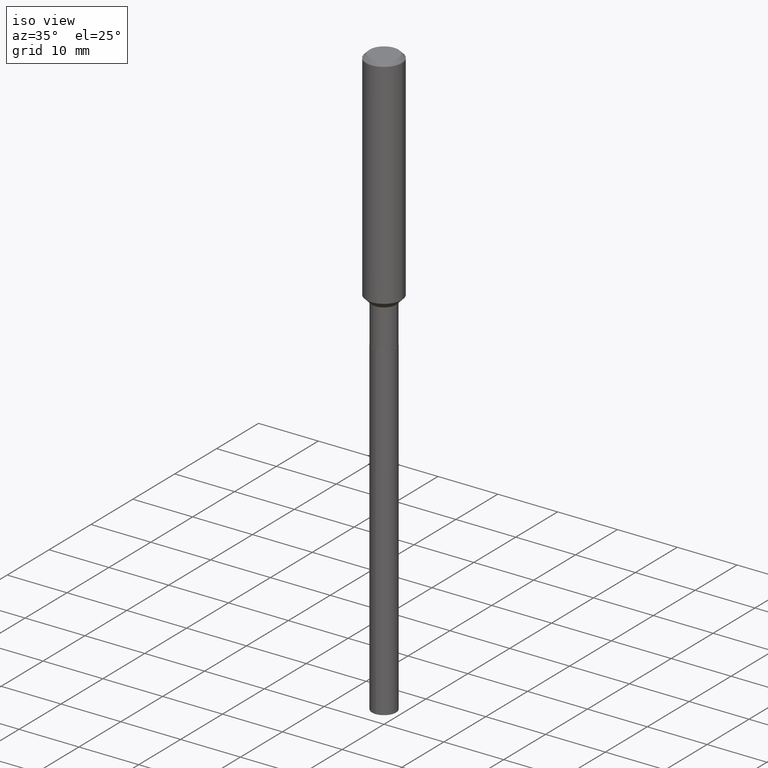
[diagram: clean part render]
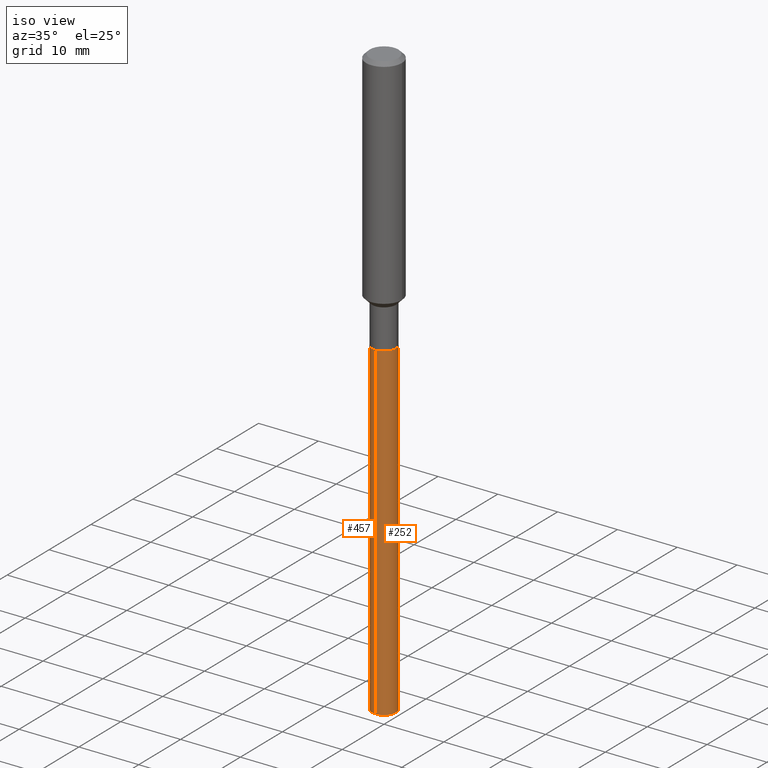
[diagram: same view with one multi-face feature highlighted, each face labeled with its STEP entity id]
A machine part, iso view. The highlighted faces form ONE feature: a constant-radius fillet chain: 2 tangent blend faces with common blend radius 2.0002 mm. The faces share edges in the B-rep.
Their STEP definitions:
[1] entity #457 (Cylinder):
#23 = EDGE_CURVE ( 'NONE', #260, #319, #287, .T. ) ;
#24 = VECTOR ( 'NONE', #190, 39.37007874015748143 ) ;
#28 = DIRECTION ( 'NONE',  ( -6.982962677686264344E-15, -1.000000000000000000, 6.938026650575906587E-15 ) ) ;
#39 = DIRECTION ( 'NONE',  ( -2.445430704826410489E-29, 3.491535902157436245E-15, 1.000000000000000000 ) ) ;
#44 = EDGE_CURVE ( 'NONE', #430, #459, #149, .T. ) ;
#46 = CARTESIAN_POINT ( 'NONE',  ( -5.499083108676978935E-16, -0.07875000000001357303, -3.897979550045322483 ) ) ;
#79 = AXIS2_PLACEMENT_3D ( 'NONE', #377, #185, #28 ) ;
#125 = VECTOR ( 'NONE', #370, 39.37007874015748143 ) ;
#131 = CYLINDRICAL_SURFACE ( 'NONE', #221, 0.07875000000000000056 ) ;
#132 = ORIENTED_EDGE ( 'NONE', *, *, #346, .T. ) ;
#149 = LINE ( 'NONE', #296, #125 ) ;
#185 = DIRECTION ( 'NONE',  ( -2.445430704826410489E-29, 3.491535902157436245E-15, 1.000000000000000000 ) ) ;
#190 = DIRECTION ( 'NONE',  ( -2.445430704826410489E-29, 3.491535902157436640E-15, 1.000000000000000000 ) ) ;
#193 = DIRECTION ( 'NONE',  ( -6.982962677686264344E-15, -1.000000000000000000, 3.469013325287953293E-15 ) ) ;
#221 = AXIS2_PLACEMENT_3D ( 'NONE', #266, #39, #193 ) ;
#254 = CARTESIAN_POINT ( 'NONE',  ( 5.595524044111739581E-16, 0.07874999999998638645, -3.897979550045323371 ) ) ;
#260 = VERTEX_POINT ( 'NONE', #254 ) ;
#261 = AXIS2_PLACEMENT_3D ( 'NONE', #482, #298, #290 ) ;
#266 = CARTESIAN_POINT ( 'NONE',  ( 4.236041066073893047E-29, -6.047943975144096777E-15, -1.732199999999999962 ) ) ;
#268 = ORIENTED_EDGE ( 'NONE', *, *, #23, .F. ) ;
#272 = EDGE_LOOP ( 'NONE', ( #268, #132, #426, #320 ) ) ;
#287 = LINE ( 'NONE', #433, #24 ) ;
#290 = DIRECTION ( 'NONE',  ( -6.982962677686264344E-15, -1.000000000000000000, 3.469013325287953293E-15 ) ) ;
#296 = CARTESIAN_POINT ( 'NONE',  ( -5.499083108677510430E-16, -0.07875000000000603739, -1.732199999999999518 ) ) ;
#298 = DIRECTION ( 'NONE',  ( -2.445430704826410489E-29, 3.491535902157436245E-15, 1.000000000000000000 ) ) ;
#311 = FACE_OUTER_BOUND ( 'NONE', #272, .T. ) ;
#315 = EDGE_CURVE ( 'NONE', #319, #459, #472, .T. ) ;
#319 = VERTEX_POINT ( 'NONE', #446 ) ;
#320 = ORIENTED_EDGE ( 'NONE', *, *, #315, .F. ) ;
#346 = EDGE_CURVE ( 'NONE', #260, #430, #462, .T. ) ;
#370 = DIRECTION ( 'NONE',  ( -2.445430704826410489E-29, 3.491535902157436640E-15, 1.000000000000000000 ) ) ;
#377 = CARTESIAN_POINT ( 'NONE',  ( 9.532304877639853407E-29, -1.360984103028571921E-14, -3.897979550045322927 ) ) ;
#426 = ORIENTED_EDGE ( 'NONE', *, *, #44, .T. ) ;
#430 = VERTEX_POINT ( 'NONE', #46 ) ;
#433 = CARTESIAN_POINT ( 'NONE',  ( 5.595524044111211044E-16, 0.07874999999999394984, -1.732200000000000184 ) ) ;
#446 = CARTESIAN_POINT ( 'NONE',  ( 5.595524044111744511E-16, 0.07874999999999394984, -1.732200000000000184 ) ) ;
#457 = ADVANCED_FACE ( 'NONE', ( #311 ), #131, .T. ) ;
#459 = VERTEX_POINT ( 'NONE', #486 ) ;
#462 = CIRCLE ( 'NONE', #79, 0.07875000000000000056 ) ;
#472 = CIRCLE ( 'NONE', #261, 0.07875000000000000056 ) ;
#482 = CARTESIAN_POINT ( 'NONE',  ( 4.236041066073893047E-29, -6.047943975144096777E-15, -1.732199999999999962 ) ) ;
#486 = CARTESIAN_POINT ( 'NONE',  ( -5.499083108677510430E-16, -0.07875000000000603739, -1.732199999999999518 ) ) ;
[2] entity #252 (Cylinder):
#9 = ORIENTED_EDGE ( 'NONE', *, *, #250, .T. ) ;
#23 = EDGE_CURVE ( 'NONE', #260, #319, #287, .T. ) ;
#24 = VECTOR ( 'NONE', #190, 39.37007874015748143 ) ;
#26 = CARTESIAN_POINT ( 'NONE',  ( 4.236041066073893047E-29, -6.047943975144096777E-15, -1.732199999999999962 ) ) ;
#36 = DIRECTION ( 'NONE',  ( -6.982962677686264344E-15, -1.000000000000000000, 3.469013325287953293E-15 ) ) ;
#44 = EDGE_CURVE ( 'NONE', #430, #459, #149, .T. ) ;
#46 = CARTESIAN_POINT ( 'NONE',  ( -5.499083108676978935E-16, -0.07875000000001357303, -3.897979550045322483 ) ) ;
#49 = ORIENTED_EDGE ( 'NONE', *, *, #44, .F. ) ;
#92 = EDGE_LOOP ( 'NONE', ( #9, #420, #123, #49 ) ) ;
#114 = FACE_OUTER_BOUND ( 'NONE', #92, .T. ) ;
#123 = ORIENTED_EDGE ( 'NONE', *, *, #473, .F. ) ;
#125 = VECTOR ( 'NONE', #370, 39.37007874015748143 ) ;
#146 = DIRECTION ( 'NONE',  ( -6.982962677686264344E-15, -1.000000000000000000, 6.938026650575906587E-15 ) ) ;
#149 = LINE ( 'NONE', #296, #125 ) ;
#172 = DIRECTION ( 'NONE',  ( -6.982962677686264344E-15, -1.000000000000000000, 3.469013325287953293E-15 ) ) ;
#190 = DIRECTION ( 'NONE',  ( -2.445430704826410489E-29, 3.491535902157436640E-15, 1.000000000000000000 ) ) ;
#250 = EDGE_CURVE ( 'NONE', #430, #260, #402, .T. ) ;
#252 = ADVANCED_FACE ( 'NONE', ( #114 ), #474, .T. ) ;
#254 = CARTESIAN_POINT ( 'NONE',  ( 5.595524044111739581E-16, 0.07874999999998638645, -3.897979550045323371 ) ) ;
#260 = VERTEX_POINT ( 'NONE', #254 ) ;
#281 = CIRCLE ( 'NONE', #341, 0.07875000000000000056 ) ;
#287 = LINE ( 'NONE', #433, #24 ) ;
#296 = CARTESIAN_POINT ( 'NONE',  ( -5.499083108677510430E-16, -0.07875000000000603739, -1.732199999999999518 ) ) ;
#318 = AXIS2_PLACEMENT_3D ( 'NONE', #330, #406, #146 ) ;
#319 = VERTEX_POINT ( 'NONE', #446 ) ;
#328 = DIRECTION ( 'NONE',  ( -2.445430704826410489E-29, 3.491535902157436245E-15, 1.000000000000000000 ) ) ;
#330 = CARTESIAN_POINT ( 'NONE',  ( 9.532304877639853407E-29, -1.360984103028571921E-14, -3.897979550045322927 ) ) ;
#341 = AXIS2_PLACEMENT_3D ( 'NONE', #393, #387, #172 ) ;
#370 = DIRECTION ( 'NONE',  ( -2.445430704826410489E-29, 3.491535902157436640E-15, 1.000000000000000000 ) ) ;
#387 = DIRECTION ( 'NONE',  ( -2.445430704826410489E-29, 3.491535902157436245E-15, 1.000000000000000000 ) ) ;
#393 = CARTESIAN_POINT ( 'NONE',  ( 4.236041066073893047E-29, -6.047943975144096777E-15, -1.732199999999999962 ) ) ;
#402 = CIRCLE ( 'NONE', #318, 0.07875000000000000056 ) ;
#406 = DIRECTION ( 'NONE',  ( -2.445430704826410489E-29, 3.491535902157436245E-15, 1.000000000000000000 ) ) ;
#412 = AXIS2_PLACEMENT_3D ( 'NONE', #26, #328, #36 ) ;
#420 = ORIENTED_EDGE ( 'NONE', *, *, #23, .T. ) ;
#430 = VERTEX_POINT ( 'NONE', #46 ) ;
#433 = CARTESIAN_POINT ( 'NONE',  ( 5.595524044111211044E-16, 0.07874999999999394984, -1.732200000000000184 ) ) ;
#446 = CARTESIAN_POINT ( 'NONE',  ( 5.595524044111744511E-16, 0.07874999999999394984, -1.732200000000000184 ) ) ;
#459 = VERTEX_POINT ( 'NONE', #486 ) ;
#473 = EDGE_CURVE ( 'NONE', #459, #319, #281, .T. ) ;
#474 = CYLINDRICAL_SURFACE ( 'NONE', #412, 0.07875000000000000056 ) ;
#486 = CARTESIAN_POINT ( 'NONE',  ( -5.499083108677510430E-16, -0.07875000000000603739, -1.732199999999999518 ) ) ;